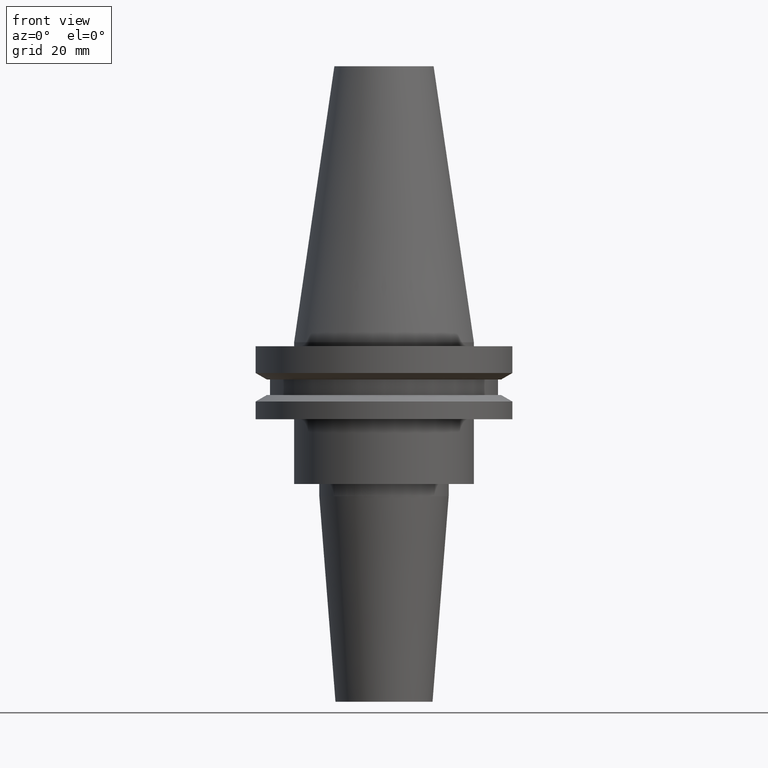
[diagram: clean part render]
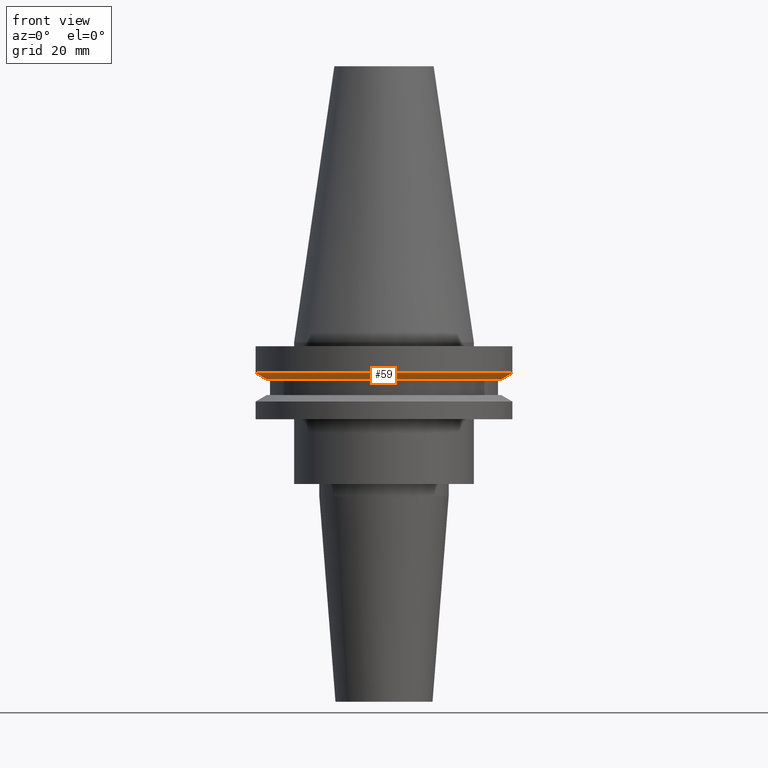
[diagram: same view with one face highlighted and labeled with its STEP entity id]
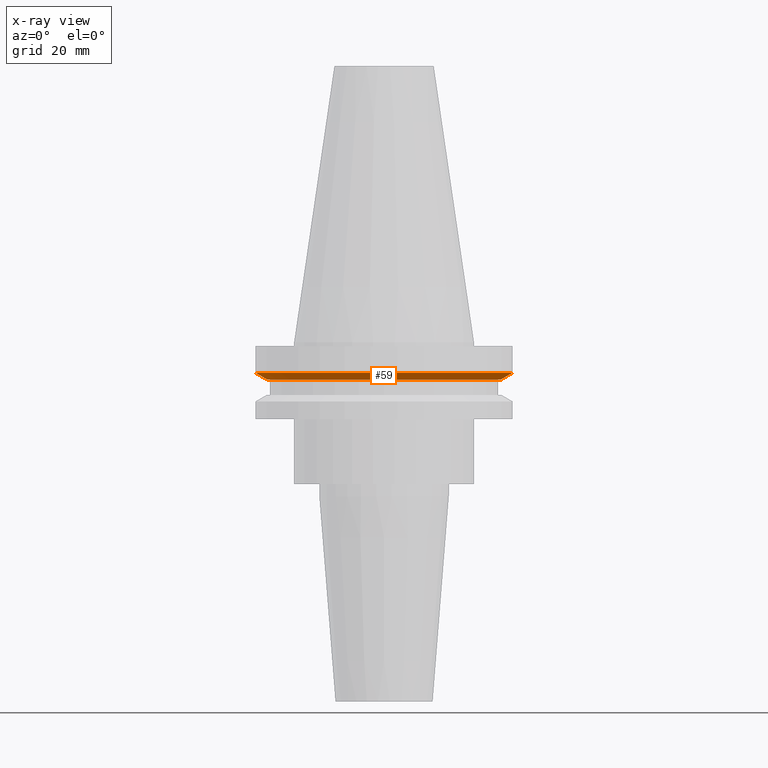
[diagram: x-ray of the same camera — body ghosted, the highlighted face saturated]
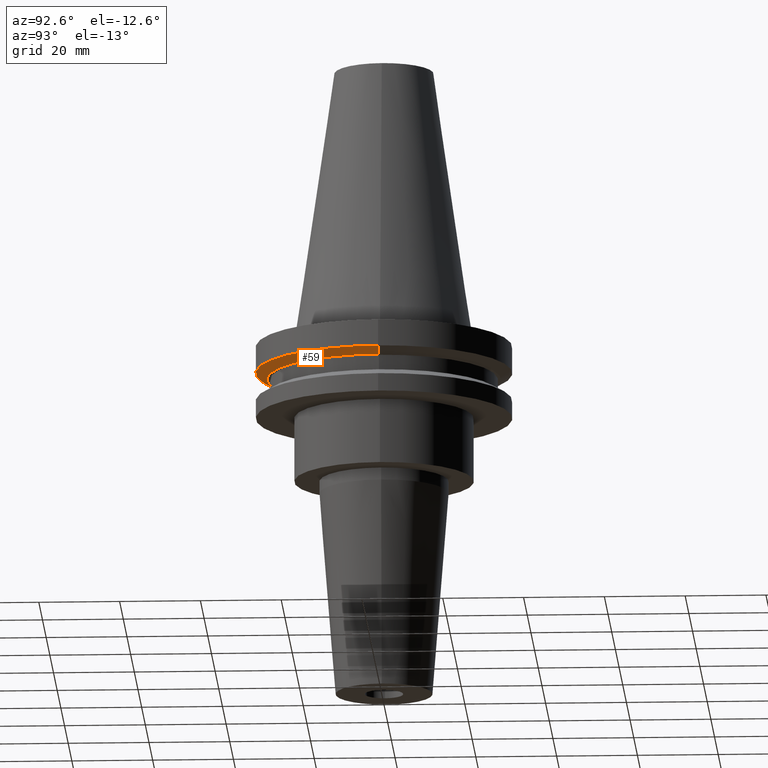
[diagram: same view with one face highlighted and labeled with its STEP entity id]
A machine part, front view. The second image highlights one B-rep face of the part: STEP entity #59.
The next image is the same camera in x-ray: the body ghosted, the highlighted face saturated — about 0% of this face is hidden behind the body in this view.
A second angle (auxiliary view) of the same face is appended — the face is thin or edge-on in the first view.
In plain terms, the highlighted conical surface has half-angle 60 deg.
Its self-contained STEP definition (entity closure, byte-faithful):
#3 = CARTESIAN_POINT ( 'NONE',  ( -28.97919780457007732, 3.718590885307660666E-15, -9.205000000000005400 ) ) ;
#13 = CARTESIAN_POINT ( 'NONE',  ( 28.97919780457007732, 0.000000000000000000, -9.205000000000005400 ) ) ;
#15 = VECTOR ( 'NONE', #388, 1000.000000000000000 ) ;
#21 = DIRECTION ( 'NONE',  ( -0.000000000000000000, -0.000000000000000000, 1.000000000000000000 ) ) ;
#24 = ORIENTED_EDGE ( 'NONE', *, *, #492, .F. ) ;
#59 = ADVANCED_FACE ( 'NONE', ( #215 ), #851, .T. ) ;
#75 = ORIENTED_EDGE ( 'NONE', *, *, #155, .F. ) ;
#82 = VERTEX_POINT ( 'NONE', #3 ) ;
#88 = CARTESIAN_POINT ( 'NONE',  ( 0.000000000000000000, 0.000000000000000000, -9.205000000000005400 ) ) ;
#97 = DIRECTION ( 'NONE',  ( 1.000000000000000000, 0.000000000000000000, 0.000000000000000000 ) ) ;
#155 = EDGE_CURVE ( 'NONE', #82, #590, #629, .T. ) ;
#179 = CARTESIAN_POINT ( 'NONE',  ( 31.75000000000000000, 0.000000000000000000, -7.605276606597335842 ) ) ;
#208 = DIRECTION ( 'NONE',  ( -0.000000000000000000, -0.000000000000000000, 1.000000000000000000 ) ) ;
#215 = FACE_OUTER_BOUND ( 'NONE', #352, .T. ) ;
#218 = CARTESIAN_POINT ( 'NONE',  ( 0.000000000000000000, 0.000000000000000000, -9.205000000000005400 ) ) ;
#295 = ORIENTED_EDGE ( 'NONE', *, *, #442, .T. ) ;
#310 = AXIS2_PLACEMENT_3D ( 'NONE', #88, #21, #97 ) ;
#318 = VECTOR ( 'NONE', #817, 1000.000000000000000 ) ;
#322 = CIRCLE ( 'NONE', #763, 31.75000000000000000 ) ;
#352 = EDGE_LOOP ( 'NONE', ( #75, #644, #295, #24 ) ) ;
#388 = DIRECTION ( 'NONE',  ( 0.8660254037844389297, 0.000000000000000000, 0.4999999999999995004 ) ) ;
#403 = AXIS2_PLACEMENT_3D ( 'NONE', #218, #208, #408 ) ;
#408 = DIRECTION ( 'NONE',  ( 1.000000000000000000, 0.000000000000000000, 0.000000000000000000 ) ) ;
#410 = DIRECTION ( 'NONE',  ( -0.000000000000000000, -0.000000000000000000, 1.000000000000000000 ) ) ;
#437 = CARTESIAN_POINT ( 'NONE',  ( -28.97919780457007732, 3.548928183322474856E-15, -9.205000000000005400 ) ) ;
#442 = EDGE_CURVE ( 'NONE', #565, #776, #647, .T. ) ;
#467 = CARTESIAN_POINT ( 'NONE',  ( 0.000000000000000000, 0.000000000000000000, -7.605276606597335842 ) ) ;
#492 = EDGE_CURVE ( 'NONE', #590, #776, #322, .T. ) ;
#533 = CARTESIAN_POINT ( 'NONE',  ( -31.75000000000000000, 3.888253587292846476E-15, -7.605276606597335842 ) ) ;
#548 = DIRECTION ( 'NONE',  ( 1.000000000000000000, 0.000000000000000000, 0.000000000000000000 ) ) ;
#565 = VERTEX_POINT ( 'NONE', #13 ) ;
#590 = VERTEX_POINT ( 'NONE', #533 ) ;
#629 = LINE ( 'NONE', #437, #318 ) ;
#644 = ORIENTED_EDGE ( 'NONE', *, *, #661, .T. ) ;
#647 = LINE ( 'NONE', #768, #15 ) ;
#661 = EDGE_CURVE ( 'NONE', #82, #565, #679, .T. ) ;
#679 = CIRCLE ( 'NONE', #310, 28.97919780457007732 ) ;
#763 = AXIS2_PLACEMENT_3D ( 'NONE', #467, #410, #548 ) ;
#768 = CARTESIAN_POINT ( 'NONE',  ( 28.97919780457007732, 0.000000000000000000, -9.205000000000005400 ) ) ;
#776 = VERTEX_POINT ( 'NONE', #179 ) ;
#817 = DIRECTION ( 'NONE',  ( -0.8660254037844389297, 1.060575238724907285E-16, 0.4999999999999995004 ) ) ;
#851 = CONICAL_SURFACE ( 'NONE', #403, 28.97919780457007732, 1.047197551196598297 ) ;